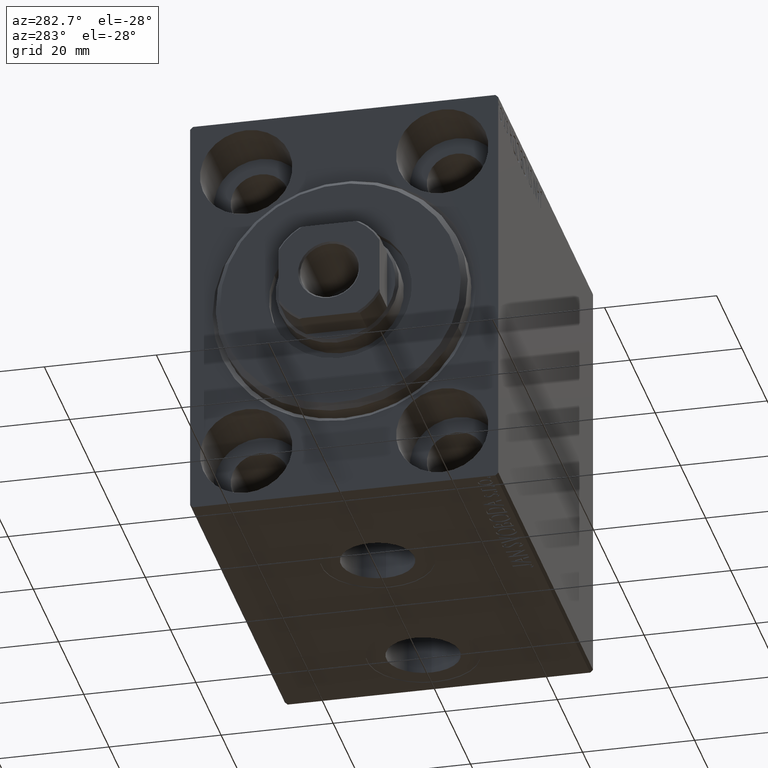
[diagram: clean part render]
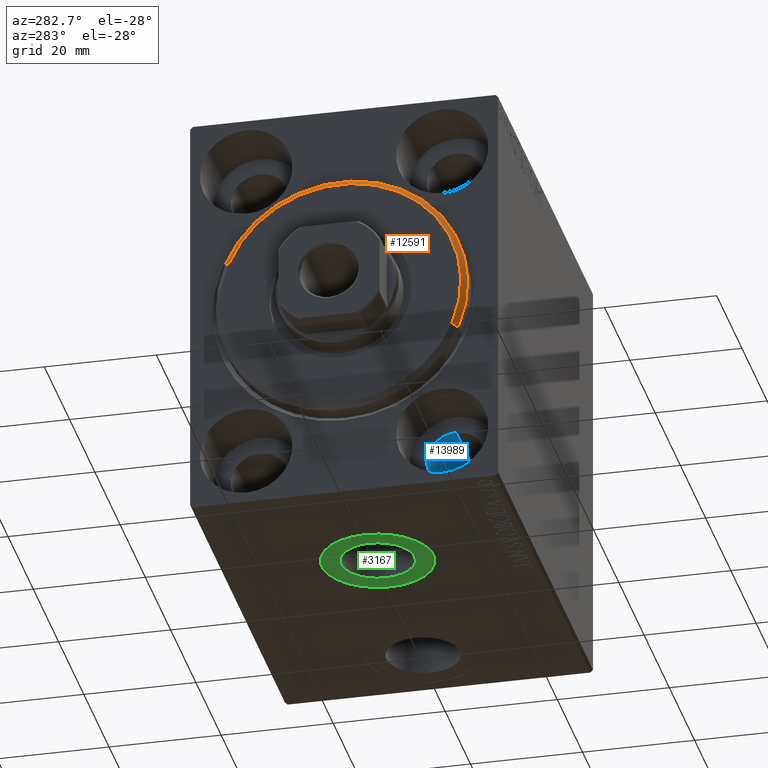
[diagram: same view with three faces highlighted in distinct colors, each labeled with its STEP entity id]
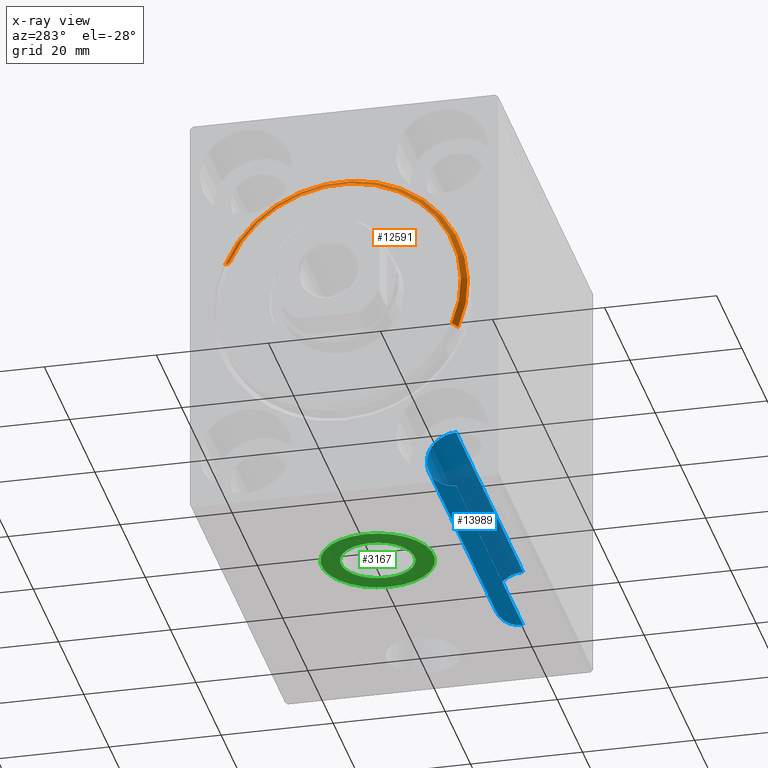
[diagram: x-ray of the same camera — body ghosted, the three highlighted faces saturated]
A machine part, auxiliary view with three faces highlighted in distinct colors.
The next image is the same camera in x-ray (body ghosted, the three faces saturated) — at least one of them is partly hidden behind the body in this view.
Their STEP definitions:

[orange] entity #12591 — the highlighted conical surface has half-angle 45 deg.
#55 = LINE ( 'NONE', #20106, #29782 ) ;
#2089 = CARTESIAN_POINT ( 'NONE',  ( 3.000000000000000000, 2.694222958124177598E-15, -21.50000000000000355 ) ) ;
#2255 = DIRECTION ( 'NONE',  ( 0.000000000000000000, 0.000000000000000000, -1.000000000000000000 ) ) ;
#3453 = ORIENTED_EDGE ( 'NONE', *, *, #33399, .T. ) ;
#3492 = CARTESIAN_POINT ( 'NONE',  ( 1.999999999999999112, 0.000000000000000000, 22.50000000000000355 ) ) ;
#5132 = LINE ( 'NONE', #18936, #28416 ) ;
#8945 = CONICAL_SURFACE ( 'NONE', #14644, 21.50000000000000355, 0.7853981633974466137 ) ;
#10314 = ORIENTED_EDGE ( 'NONE', *, *, #36423, .F. ) ;
#10823 = VERTEX_POINT ( 'NONE', #21238 ) ;
#11958 = CIRCLE ( 'NONE', #34708, 21.50000000000000355 ) ;
#12485 = DIRECTION ( 'NONE',  ( -1.000000000000000000, 0.000000000000000000, 0.000000000000000000 ) ) ;
#12591 = ADVANCED_FACE ( 'NONE', ( #35630 ), #8945, .T. ) ;
#14644 = AXIS2_PLACEMENT_3D ( 'NONE', #20821, #25187, #15394 ) ;
#14883 = ORIENTED_EDGE ( 'NONE', *, *, #27623, .F. ) ;
#15394 = DIRECTION ( 'NONE',  ( 0.000000000000000000, 0.000000000000000000, 1.000000000000000000 ) ) ;
#16062 = CARTESIAN_POINT ( 'NONE',  ( 1.999999999999999112, 0.000000000000000000, 0.000000000000000000 ) ) ;
#17199 = AXIS2_PLACEMENT_3D ( 'NONE', #16062, #12485, #2255 ) ;
#18936 = CARTESIAN_POINT ( 'NONE',  ( 3.000000000000000000, 2.632990618166810024E-15, -21.50000000000000355 ) ) ;
#20106 = CARTESIAN_POINT ( 'NONE',  ( 3.000000000000000000, 0.000000000000000000, 21.50000000000000355 ) ) ;
#20821 = CARTESIAN_POINT ( 'NONE',  ( 3.000000000000000000, 0.000000000000000000, 0.000000000000000000 ) ) ;
#21238 = CARTESIAN_POINT ( 'NONE',  ( 1.999999999999999112, 2.755455298081545172E-15, -22.50000000000000355 ) ) ;
#21423 = CARTESIAN_POINT ( 'NONE',  ( 3.000000000000000000, 0.000000000000000000, 0.000000000000000000 ) ) ;
#21984 = VERTEX_POINT ( 'NONE', #3492 ) ;
#24155 = VERTEX_POINT ( 'NONE', #42100 ) ;
#25187 = DIRECTION ( 'NONE',  ( -1.000000000000000000, 0.000000000000000000, 0.000000000000000000 ) ) ;
#27623 = EDGE_CURVE ( 'NONE', #24155, #41298, #11958, .T. ) ;
#28416 = VECTOR ( 'NONE', #42495, 1000.000000000000000 ) ;
#29782 = VECTOR ( 'NONE', #37631, 1000.000000000000000 ) ;
#30471 = EDGE_LOOP ( 'NONE', ( #10314, #14883, #3453, #39520 ) ) ;
#32795 = CIRCLE ( 'NONE', #17199, 22.50000000000000355 ) ;
#33399 = EDGE_CURVE ( 'NONE', #24155, #21984, #55, .T. ) ;
#34708 = AXIS2_PLACEMENT_3D ( 'NONE', #21423, #39176, #35633 ) ;
#35630 = FACE_OUTER_BOUND ( 'NONE', #30471, .T. ) ;
#35633 = DIRECTION ( 'NONE',  ( 0.000000000000000000, 0.000000000000000000, -1.000000000000000000 ) ) ;
#36423 = EDGE_CURVE ( 'NONE', #41298, #10823, #5132, .T. ) ;
#37631 = DIRECTION ( 'NONE',  ( -0.7071067811865487940, 0.000000000000000000, 0.7071067811865463515 ) ) ;
#39176 = DIRECTION ( 'NONE',  ( 1.000000000000000000, -0.000000000000000000, 0.000000000000000000 ) ) ;
#39520 = ORIENTED_EDGE ( 'NONE', *, *, #42313, .F. ) ;
#41298 = VERTEX_POINT ( 'NONE', #2089 ) ;
#42100 = CARTESIAN_POINT ( 'NONE',  ( 3.000000000000000000, 0.000000000000000000, 21.50000000000000355 ) ) ;
#42313 = EDGE_CURVE ( 'NONE', #10823, #21984, #32795, .T. ) ;
#42495 = DIRECTION ( 'NONE',  ( -0.7071067811865487940, 8.659560562354919300E-17, -0.7071067811865463515 ) ) ;

[blue] entity #13989 — the highlighted cylindrical surface (edge-blend (fillet) strip) has radius 5.25 mm, axis along (-1, -0, -0).
#188 = DIRECTION ( 'NONE',  ( -1.000000000000000000, -0.000000000000000000, -0.000000000000000000 ) ) ;
#1190 = DIRECTION ( 'NONE',  ( -1.000000000000000000, -0.000000000000000000, -0.000000000000000000 ) ) ;
#1527 = DIRECTION ( 'NONE',  ( -1.000000000000000000, -0.000000000000000000, -0.000000000000000000 ) ) ;
#5604 = CARTESIAN_POINT ( 'NONE',  ( 64.00000000000000000, -17.50000000000000355, -32.75000000000000000 ) ) ;
#5906 = ORIENTED_EDGE ( 'NONE', *, *, #33078, .T. ) ;
#6536 = LINE ( 'NONE', #20347, #20061 ) ;
#8489 = CARTESIAN_POINT ( 'NONE',  ( 10.99999999999999645, -17.50000000000000355, -27.50000000000000355 ) ) ;
#10068 = EDGE_LOOP ( 'NONE', ( #42351, #28097, #5906, #21105 ) ) ;
#13187 = CIRCLE ( 'NONE', #30930, 5.249999999999997335 ) ;
#13378 = AXIS2_PLACEMENT_3D ( 'NONE', #8489, #22072, #32508 ) ;
#13989 = ADVANCED_FACE ( 'NONE', ( #34692 ), #15107, .F. ) ;
#15107 = CYLINDRICAL_SURFACE ( 'NONE', #43185, 5.250000000000000888 ) ;
#15901 = VERTEX_POINT ( 'NONE', #17000 ) ;
#16215 = CARTESIAN_POINT ( 'NONE',  ( 10.99999999999999645, -17.50000000000000355, -32.75000000000000000 ) ) ;
#16435 = VERTEX_POINT ( 'NONE', #16215 ) ;
#17000 = CARTESIAN_POINT ( 'NONE',  ( 64.00000000000000000, -17.50000000000000355, -22.25000000000000355 ) ) ;
#17007 = DIRECTION ( 'NONE',  ( -1.000000000000000000, -0.000000000000000000, -0.000000000000000000 ) ) ;
#17548 = CARTESIAN_POINT ( 'NONE',  ( 64.00000000000000000, -17.50000000000000355, -27.50000000000000355 ) ) ;
#18969 = EDGE_CURVE ( 'NONE', #15901, #35117, #13187, .T. ) ;
#20061 = VECTOR ( 'NONE', #17007, 1000.000000000000000 ) ;
#20347 = CARTESIAN_POINT ( 'NONE',  ( 75.00000000000000000, -17.50000000000000355, -32.75000000000000000 ) ) ;
#20630 = VECTOR ( 'NONE', #1190, 1000.000000000000000 ) ;
#21105 = ORIENTED_EDGE ( 'NONE', *, *, #27659, .T. ) ;
#22072 = DIRECTION ( 'NONE',  ( -1.000000000000000000, 0.000000000000000000, 0.000000000000000000 ) ) ;
#27327 = DIRECTION ( 'NONE',  ( 0.000000000000000000, 0.000000000000000000, -1.000000000000000000 ) ) ;
#27598 = CIRCLE ( 'NONE', #13378, 5.250000000000000888 ) ;
#27659 = EDGE_CURVE ( 'NONE', #43496, #16435, #27598, .T. ) ;
#28097 = ORIENTED_EDGE ( 'NONE', *, *, #18969, .F. ) ;
#28119 = LINE ( 'NONE', #38552, #20630 ) ;
#28667 = CARTESIAN_POINT ( 'NONE',  ( 75.00000000000000000, -17.50000000000000355, -27.50000000000000355 ) ) ;
#30930 = AXIS2_PLACEMENT_3D ( 'NONE', #17548, #188, #27327 ) ;
#31787 = DIRECTION ( 'NONE',  ( 0.000000000000000000, 0.000000000000000000, 1.000000000000000000 ) ) ;
#32508 = DIRECTION ( 'NONE',  ( 0.000000000000000000, 0.000000000000000000, 1.000000000000000000 ) ) ;
#33078 = EDGE_CURVE ( 'NONE', #15901, #43496, #28119, .T. ) ;
#34692 = FACE_OUTER_BOUND ( 'NONE', #10068, .T. ) ;
#35117 = VERTEX_POINT ( 'NONE', #5604 ) ;
#38552 = CARTESIAN_POINT ( 'NONE',  ( 75.00000000000000000, -17.50000000000000355, -22.25000000000000355 ) ) ;
#41377 = EDGE_CURVE ( 'NONE', #35117, #16435, #6536, .T. ) ;
#42351 = ORIENTED_EDGE ( 'NONE', *, *, #41377, .F. ) ;
#42491 = CARTESIAN_POINT ( 'NONE',  ( 10.99999999999999645, -17.50000000000000355, -22.25000000000000355 ) ) ;
#43185 = AXIS2_PLACEMENT_3D ( 'NONE', #28667, #1527, #31787 ) ;
#43496 = VERTEX_POINT ( 'NONE', #42491 ) ;

[green] entity #3167 — the highlighted planar face has unit normal (0, 0, -1).
#23 = CARTESIAN_POINT ( 'NONE',  ( 33.07999999999999829, -1.921168617569957634E-15, -37.39999999999999858 ) ) ;
#2344 = ORIENTED_EDGE ( 'NONE', *, *, #19926, .T. ) ;
#3167 = ADVANCED_FACE ( 'NONE', ( #38305, #28530 ), #31418, .T. ) ;
#3473 = AXIS2_PLACEMENT_3D ( 'NONE', #30226, #33572, #24429 ) ;
#5344 = EDGE_CURVE ( 'NONE', #40597, #42571, #19593, .T. ) ;
#5541 = CARTESIAN_POINT ( 'NONE',  ( 19.91999999999999815, -2.726986211408916281E-15, -37.39999999999999858 ) ) ;
#5627 = VERTEX_POINT ( 'NONE', #20251 ) ;
#5827 = DIRECTION ( 'NONE',  ( -1.000000000000000000, 0.000000000000000000, 0.000000000000000000 ) ) ;
#7083 = DIRECTION ( 'NONE',  ( 0.000000000000000000, 0.000000000000000000, -1.000000000000000000 ) ) ;
#7948 = DIRECTION ( 'NONE',  ( 0.000000000000000000, 0.000000000000000000, -1.000000000000000000 ) ) ;
#8212 = AXIS2_PLACEMENT_3D ( 'NONE', #37550, #7083, #14198 ) ;
#9280 = EDGE_CURVE ( 'NONE', #42571, #40597, #38741, .T. ) ;
#11016 = AXIS2_PLACEMENT_3D ( 'NONE', #15081, #7948, #28641 ) ;
#13455 = EDGE_LOOP ( 'NONE', ( #39098, #2344 ) ) ;
#14136 = CIRCLE ( 'NONE', #3473, 9.999999999999998224 ) ;
#14198 = DIRECTION ( 'NONE',  ( -1.000000000000000000, 0.000000000000000000, 0.000000000000000000 ) ) ;
#15081 = CARTESIAN_POINT ( 'NONE',  ( 26.50000000000000000, -2.726986211408916281E-15, -37.39999999999999858 ) ) ;
#16476 = ORIENTED_EDGE ( 'NONE', *, *, #5344, .F. ) ;
#18321 = DIRECTION ( 'NONE',  ( -1.000000000000000000, 0.000000000000000000, -0.000000000000000000 ) ) ;
#19208 = CARTESIAN_POINT ( 'NONE',  ( 26.50000000000000000, -2.726986211408916281E-15, -37.39999999999999858 ) ) ;
#19593 = CIRCLE ( 'NONE', #33782, 6.580000000000002736 ) ;
#19926 = EDGE_CURVE ( 'NONE', #28749, #5627, #27416, .T. ) ;
#20251 = CARTESIAN_POINT ( 'NONE',  ( 16.50000000000000000, -2.726986211408916281E-15, -37.39999999999999858 ) ) ;
#21207 = CARTESIAN_POINT ( 'NONE',  ( 0.000000000000000000, 0.000000000000000000, -37.39999999999999858 ) ) ;
#24429 = DIRECTION ( 'NONE',  ( -1.000000000000000000, 0.000000000000000000, 0.000000000000000000 ) ) ;
#26082 = DIRECTION ( 'NONE',  ( 0.000000000000000000, 0.000000000000000000, -1.000000000000000000 ) ) ;
#27416 = CIRCLE ( 'NONE', #8212, 9.999999999999998224 ) ;
#28090 = DIRECTION ( 'NONE',  ( 0.000000000000000000, 0.000000000000000000, -1.000000000000000000 ) ) ;
#28172 = EDGE_CURVE ( 'NONE', #5627, #28749, #14136, .T. ) ;
#28530 = FACE_OUTER_BOUND ( 'NONE', #13455, .T. ) ;
#28641 = DIRECTION ( 'NONE',  ( -1.000000000000000000, 0.000000000000000000, 0.000000000000000000 ) ) ;
#28749 = VERTEX_POINT ( 'NONE', #35265 ) ;
#30226 = CARTESIAN_POINT ( 'NONE',  ( 26.50000000000000000, -2.726986211408916281E-15, -37.39999999999999858 ) ) ;
#31418 = PLANE ( 'NONE',  #33724 ) ;
#33500 = EDGE_LOOP ( 'NONE', ( #39225, #16476 ) ) ;
#33572 = DIRECTION ( 'NONE',  ( 0.000000000000000000, 0.000000000000000000, -1.000000000000000000 ) ) ;
#33724 = AXIS2_PLACEMENT_3D ( 'NONE', #21207, #28090, #18321 ) ;
#33782 = AXIS2_PLACEMENT_3D ( 'NONE', #19208, #26082, #5827 ) ;
#35265 = CARTESIAN_POINT ( 'NONE',  ( 36.50000000000000000, -1.502339412261563813E-15, -37.39999999999999858 ) ) ;
#37550 = CARTESIAN_POINT ( 'NONE',  ( 26.50000000000000000, -2.726986211408916281E-15, -37.39999999999999858 ) ) ;
#38305 = FACE_BOUND ( 'NONE', #33500, .T. ) ;
#38741 = CIRCLE ( 'NONE', #11016, 6.580000000000002736 ) ;
#39098 = ORIENTED_EDGE ( 'NONE', *, *, #28172, .T. ) ;
#39225 = ORIENTED_EDGE ( 'NONE', *, *, #9280, .F. ) ;
#40597 = VERTEX_POINT ( 'NONE', #23 ) ;
#42571 = VERTEX_POINT ( 'NONE', #5541 ) ;